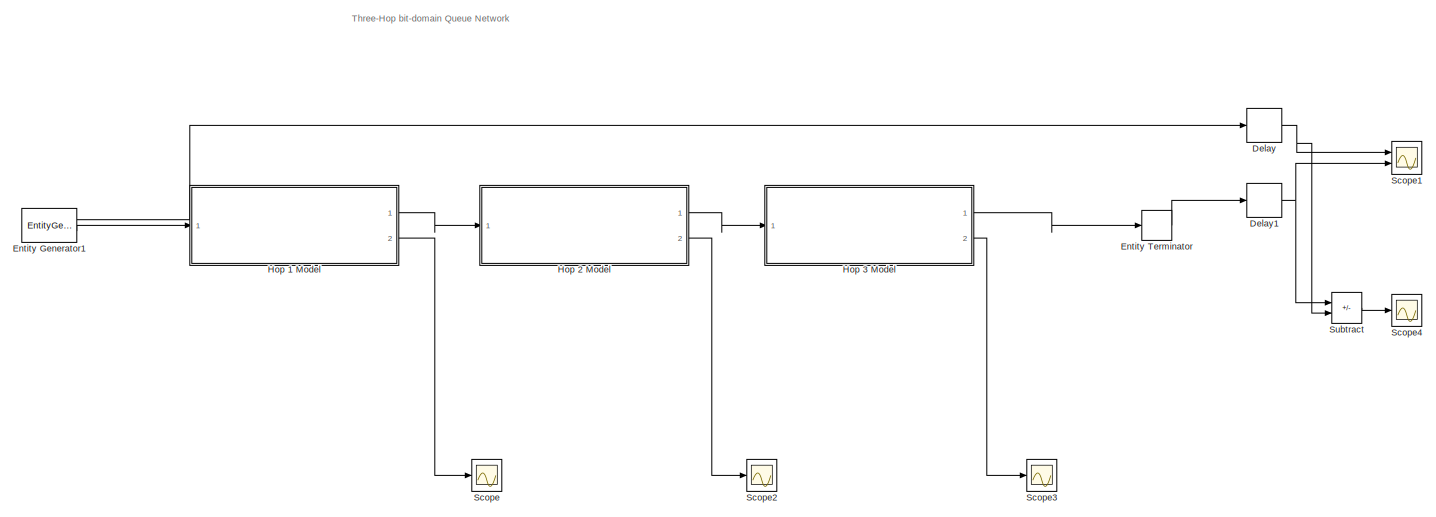
[diagram: root canvas - part 1/2, most of the canvas]
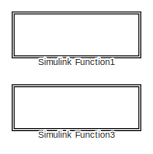
[diagram: root canvas - part 2/2, middle left region]
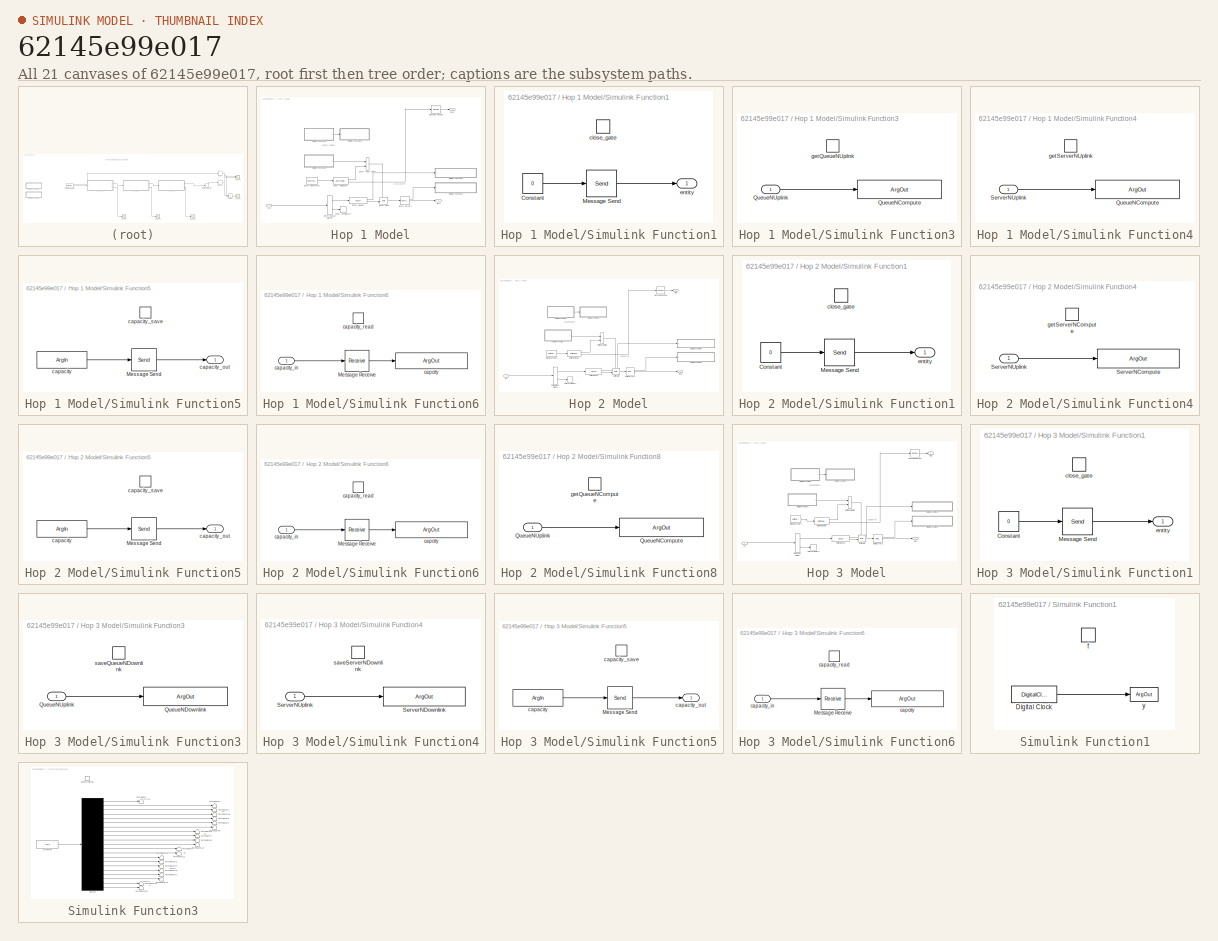
[diagram: thumbnail index - all 21 canvases of the model, root first then tree order]
MODEL slx_62145e99e017
KIND model
CONFIG AbsTol = auto
CONFIG EnableMultiTasking = on
CONFIG FixedStep = auto
CONFIG MaxStep = auto
CONFIG MinStep = auto
CONFIG RelTol = 1e-3
CONFIG SampleTimeConstraint = Unconstrained
CONFIG SolverName = VariableStepAuto
CONFIG StartTime = 0.0
CONFIG StopTime = 100
BLOCK [Delay] Delay
  Commented = on
  DelayLength = 0
  InputPortMap = u0
  Ports = [1, 1]
  SampleTime = 1
BLOCK [Delay] Delay1
  Commented = on
  DelayLength = 0
  InputPortMap = u0
  Ports = [1, 1]
  SampleTime = 1
BLOCK [EntityGenerator] Entity Generator1
  AttributeInitialValue = inf|-1|-1|-1|-1|-1|-1|-1|-1|-1|-1|-1|-1|inf|inf|inf|inf|inf|inf|inf
  AttributeName = starttime|queuen_uplink_bu|servern_uplink_bu|queuen_compute_bu|servern_compute_bu|queuen_downlink_bu|servern_downlink_bu|queuen_compute_bc|servern_compute_bc|queuen_downlink_bc|servern_downlink_bc|queuen_downlink_bd|servern_downlink_bd|queuetime_uplink|servicetime_uplink|queuetime_compute|servicetime_compute|queuetime_downlink|servicetime_downlink|endtime
  EntityType = Structured
  EntityTypeName = Entity
  GenerateAction = entity.starttime = getCurrentTime();\n\nentity.queuen_uplink_bu = getQueueNUplink();\nentity.servern_uplink_bu = getServerNUplink();\n\nentity.queuen_compute_bu = getQueueNCompute();\nentity.servern_compute_bu = getServerNCompute();\n\nentity.queuen_downlink_bu = getQueueNDownlink();\nentity.servern_downlink_bu = getServerNDownlink();\n\n%[nd,ne,np] = saveCrossNUplink();\n%entity.crossn_uplink = nd-ne-np;
  GenerateEntityAtSimulationStart = off
  IntergenerationTimeAction = T_max = sim_vars(1);\nrho = sim_vars(2);\n\npersistent T;\nif isempty(T)\n    T = 1; \nend\n\npersistent next_dt;\nif isempty(next_dt)\n    next_dt = 0;\nend\n\npersistent count igt;\nif isempty(count)\n    igt = zeros(1,rho);\n    igt(end) = 1;\n    count = 1;\nend\n\nif T > T_max\n    dt = inf;\nelse\n    dt = next_dt;\n    next_dt = igt(count);\n    count = count+1;\n    if (next_dt==1)\n        count = 1;\n        T = T ...<+16ch>
  NumberEntitiesDeparted = on
  OutputPortMap = o0,o3
  OutputPortMessageModes = n,m
  Ports = [0, 2]
  TimeSource = MATLAB action
BLOCK [EntityTerminator] Entity Terminator
  EntryAction = entity.endtime = getCurrentTime();\n\nsaveAttributes([entity.starttime;               ...\n                entity.queuen_uplink_bu;        ...\n                entity.servern_uplink_bu;       ...\n                entity.queuen_compute_bu;       ...\n                entity.servern_compute_bu;      ...\n                entity.queuen_downlink_bu;      ...\n                entity.servern_downlink_bu;     ...\n...<+707ch>
  InputPortMap = u0
  InputPortMessageModes = m
  NumberEntitiesArrived = on
  OutputPortMap = o0
  Ports = [1, 1]
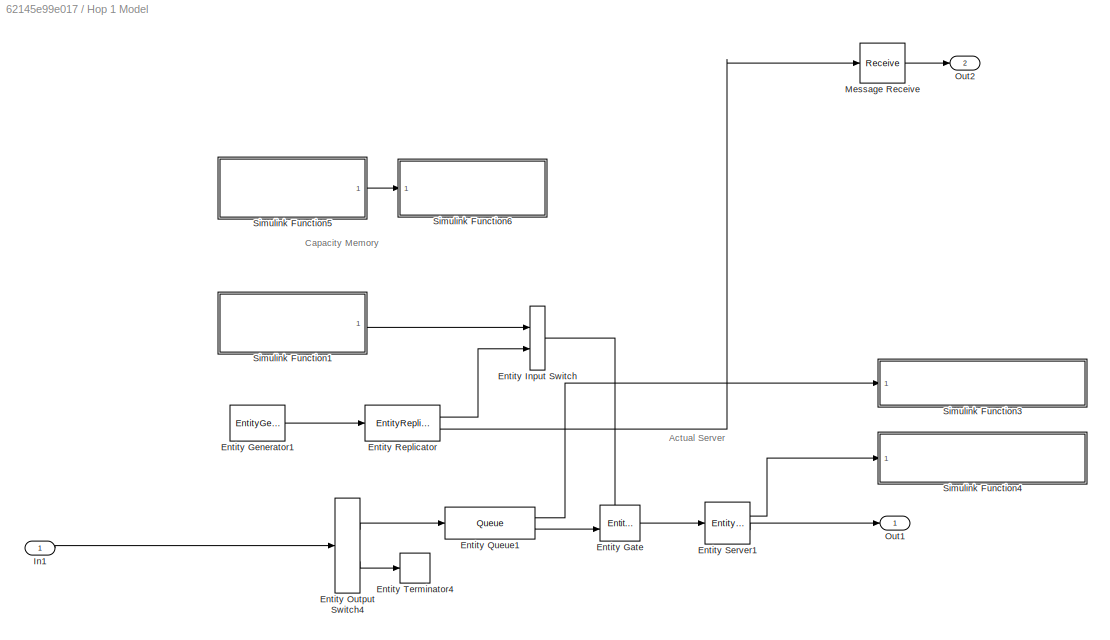
BLOCK [SubSystem] Hop 1 Model
  Ports = [1, 2]
  RequestExecContextInheritance = off
BLOCK [EntityGate] Hop 1 Model/Entity Gate
  InputPortMap = u0,u1
  InputPortMessageModes = m,m
  OutputPortMap = o0
  OutputPortMessageModes = m
  Ports = [2, 1]
BLOCK [EntityGenerator] Hop 1 Model/Entity Generator1
  AttributeInitialValue = 0
  AttributeName = entity
  EntityTypeName = server_capacity_bell
  GenerateAction = time_slot_duration = sim_vars(3);\nw = sim_vars(4);\nsnr = sim_vars(5);\ncapacity = getServerCapacityHop1(1,time_slot_duration,snr,w,sim_vars(13));\ncapacity_save(capacity);\nentity = capacity;
  IntergenerationTimeAction = dt = 1;
  OutputPortMap = o3
  OutputPortMessageModes = m
  Ports = [0, 1]
  TimeSource = MATLAB action
BLOCK [EntityInputSwitch] Hop 1 Model/Entity Input Switch
  InputPortMap = u1,u2
  InputPortMessageModes = m,m
  OutputPortMap = o0
  OutputPortMessageModes = m
  Ports = [2, 1]
BLOCK [EntityOutputSwitch] Hop 1 Model/Entity Output Switch4
  InputPortMap = u1
  InputPortMessageModes = m
  OutputPortMap = o0,o1
  OutputPortMessageModes = m,m
  Ports = [1, 2]
  SwitchAttributeName = drop_at_source
BLOCK [Queue] Hop 1 Model/Entity Queue1
  Capacity = sim_vars(10)
  InputPortMap = u0
  InputPortMessageModes = m
  NumberEntitiesInBlock = on
  OutputPortMap = o1,o5
  OutputPortMessageModes = n,m
  Ports = [1, 2]
BLOCK [EntityReplicator] Hop 1 Model/Entity Replicator
  InputPortMap = u0
  InputPortMessageModes = m
  OutputPortMap = o0,o1
  OutputPortMessageModes = m,m
  Ports = [1, 2]
BLOCK [EntityServer] Hop 1 Model/Entity Server1
  Capacity = 1
  EntryAction = % update packet's queue timestamp\nentity.queuetime_uplink = getCurrentTime();
  InputPortMap = u2
  InputPortMessageModes = m
  NumberEntitiesInBlock = on
  OutputPortMap = o1,o9
  OutputPortMessageModes = n,m
  Ports = [1, 2]
  ServiceCompleteAction = % update service time\nentity.servicetime_uplink = getCurrentTime();\n\n% save network state in front\nentity.queuen_compute_bc = getQueueNCompute();\nentity.servern_compute_bc = getServerNCompute();\n\nentity.queuen_downlink_bc = getQueueNDownlink();\nentity.servern_downlink_bc = getServerNDownlink();
  ServiceTimeAction = capacity = capacity_read();\ncapacity_save(capacity-1);\nif capacity == 1\n    close_gate();\nend\ndt = 0;
  ServiceTimeSource = MATLAB action
BLOCK [EntityTerminator] Hop 1 Model/Entity Terminator4
  EntryAction = saveAttributes([entity.starttime;               ...\n                entity.queuen_uplink_bu;        ...\n                entity.servern_uplink_bu;       ...\n                entity.queuen_compute_bu;       ...\n                entity.servern_compute_bu;      ...\n                entity.queuen_downlink_bu;      ...\n                entity.servern_downlink_bu;     ...\n                entity.queuen_comput...<+671ch>  <repeated x3 — deduplicated; at blocks: Entity Terminator4>
  InputPortMap = u0
  InputPortMessageModes = m
  Ports = [1]
BLOCK [Inport] Hop 1 Model/In1
BLOCK [Receive] Hop 1 Model/Message Receive
  InitialValue = [0]
  InputPortMap = u0
  InputPortMessageModes = m
  OutputPortMap = o1
  Ports = [1, 1]
  QueueLength = 1
  QueueOverwriting = on
  SampleTime = 1
BLOCK [Outport] Hop 1 Model/Out1
BLOCK [Outport] Hop 1 Model/Out2
  Port = 2
BLOCK [SubSystem] Hop 1 Model/Simulink Function1
  Ports = [0, 1, 0, 1]
  RequestExecContextInheritance = off
  TreatAsAtomicUnit = on
BLOCK [Constant] Hop 1 Model/Simulink Function1/Constant
  Value = 0
BLOCK [Send] Hop 1 Model/Simulink Function1/Message Send
  InputPortMap = u1
  OutputPortMessageModes = m
  Ports = [1, 1]
BLOCK [TriggerPort] Hop 1 Model/Simulink Function1/close_gate
  FunctionName = close_gate
  FunctionVisibility = scoped
  IsSimulinkFunction = on
  Ports = []
  StatesWhenEnabling = held
  TriggerType = function-call
  VariantControl = (inherit)
BLOCK [Outport] Hop 1 Model/Simulink Function1/entity
  InitialOutput = [0]
  VectorParamsAs1DForOutWhenUnconnected = off
BLOCK [SubSystem] Hop 1 Model/Simulink Function3
  Ports = [1, 0, 0, 1]
  RequestExecContextInheritance = off
  TreatAsAtomicUnit = on
BLOCK [ArgOut] Hop 1 Model/Simulink Function3/QueueNCompute
  ArgumentName = QueueNUplink
  DisableCoverage = on
BLOCK [Inport] Hop 1 Model/Simulink Function3/QueueNUplink
BLOCK [TriggerPort] Hop 1 Model/Simulink Function3/getQueueNUplink
  FunctionName = getQueueNUplink
  IsSimulinkFunction = on
  Ports = []
  StatesWhenEnabling = held
  TriggerType = function-call
  VariantControl = (inherit)
BLOCK [SubSystem] Hop 1 Model/Simulink Function4
  Ports = [1, 0, 0, 1]
  RequestExecContextInheritance = off
  TreatAsAtomicUnit = on
BLOCK [ArgOut] Hop 1 Model/Simulink Function4/QueueNCompute
  ArgumentName = ServerNUplink
  DisableCoverage = on
BLOCK [Inport] Hop 1 Model/Simulink Function4/ServerNUplink
BLOCK [TriggerPort] Hop 1 Model/Simulink Function4/getServerNUplink
  FunctionName = getServerNUplink
  IsSimulinkFunction = on
  Ports = []
  StatesWhenEnabling = held
  TriggerType = function-call
  VariantControl = (inherit)
BLOCK [SubSystem] Hop 1 Model/Simulink Function5
  Ports = [0, 1, 0, 1]
  RequestExecContextInheritance = off
  TreatAsAtomicUnit = on
BLOCK [Send] Hop 1 Model/Simulink Function5/Message Send
  InputPortMap = u1
  OutputPortMessageModes = m
  Ports = [1, 1]
BLOCK [ArgIn] Hop 1 Model/Simulink Function5/capacity
  ArgumentName = capacity
  DisableCoverage = on
BLOCK [Outport] Hop 1 Model/Simulink Function5/capacity_out
  InitialOutput = [0]
  VectorParamsAs1DForOutWhenUnconnected = off
BLOCK [TriggerPort] Hop 1 Model/Simulink Function5/capacity_save
  FunctionName = capacity_save
  FunctionVisibility = scoped
  IsSimulinkFunction = on
  Ports = []
  StatesWhenEnabling = held
  TriggerType = function-call
  VariantControl = (inherit)
BLOCK [SubSystem] Hop 1 Model/Simulink Function6
  Ports = [1, 0, 0, 1]
  RequestExecContextInheritance = off
  TreatAsAtomicUnit = on
BLOCK [Receive] Hop 1 Model/Simulink Function6/Message Receive
  InitialValue = [0]
  InputPortMap = u0
  InputPortMessageModes = m
  OutputPortMap = o1
  Ports = [1, 1]
  QueueLength = 1
  QueueOverwriting = on
BLOCK [Inport] Hop 1 Model/Simulink Function6/capacity_in
BLOCK [TriggerPort] Hop 1 Model/Simulink Function6/capacity_read
  FunctionName = capacity_read
  FunctionVisibility = scoped
  IsSimulinkFunction = on
  Ports = []
  StatesWhenEnabling = held
  TriggerType = function-call
  VariantControl = (inherit)
BLOCK [ArgOut] Hop 1 Model/Simulink Function6/capcity
  ArgumentName = capacity
  DisableCoverage = on
BLOCK [SubSystem] Hop 2 Model
  Ports = [1, 2]
  RequestExecContextInheritance = off
BLOCK [EntityGate] Hop 2 Model/Entity Gate
  InputPortMap = u0,u1
  InputPortMessageModes = m,m
  OutputPortMap = o0
  OutputPortMessageModes = m
  Ports = [2, 1]
BLOCK [EntityGenerator] Hop 2 Model/Entity Generator1
  AttributeInitialValue = 0
  AttributeName = entity
  EntityTypeName = server_capacity_bell
  GenerateAction = time_slot_duration = sim_vars(3);\nw = sim_vars(6);\nsnr = sim_vars(7);\ncapacity = getServerCapacityHop2(1,time_slot_duration,snr,w,sim_vars(13));\ncapacity_save(capacity);\nentity = capacity;
  IntergenerationTimeAction = dt = 1;
  OutputPortMap = o3
  OutputPortMessageModes = m
  Ports = [0, 1]
  TimeSource = MATLAB action
BLOCK [EntityInputSwitch] Hop 2 Model/Entity Input Switch
  InputPortMap = u1,u2
  InputPortMessageModes = m,m
  OutputPortMap = o0
  OutputPortMessageModes = m
  Ports = [2, 1]
BLOCK [EntityOutputSwitch] Hop 2 Model/Entity Output Switch4
  InputPortMap = u1
  InputPortMessageModes = m
  OutputPortMap = o0,o1
  OutputPortMessageModes = m,m
  Ports = [1, 2]
  SwitchAttributeName = drop_at_source
BLOCK [Queue] Hop 2 Model/Entity Queue1
  Capacity = sim_vars(11)
  InputPortMap = u0
  InputPortMessageModes = m
  NumberEntitiesInBlock = on
  OutputPortMap = o1,o5
  OutputPortMessageModes = n,m
  Ports = [1, 2]
BLOCK [EntityReplicator] Hop 2 Model/Entity Replicator
  InputPortMap = u0
  InputPortMessageModes = m
  OutputPortMap = o0,o1
  OutputPortMessageModes = m,m
  Ports = [1, 2]
BLOCK [EntityServer] Hop 2 Model/Entity Server1
  Capacity = 1
  EntryAction = % record packet's queue timestamp\nentity.queuetime_compute = getCurrentTime();
  InputPortMap = u2
  InputPortMessageModes = m
  NumberEntitiesInBlock = on
  OutputPortMap = o1,o9
  OutputPortMessageModes = n,m
  Ports = [1, 2]
  ServiceCompleteAction = % record service timestamp\nentity.servicetime_compute = getCurrentTime();\n\n% record network state in front\nentity.queuen_downlink_bd = getQueueNDownlink();\nentity.servern_downlink_bd = getServerNDownlink();
  ServiceTimeAction = capacity = capacity_read();\ncapacity_save(capacity-1);\nif capacity == 1\n    close_gate();\nend\ndt = 0;
  ServiceTimeSource = MATLAB action
BLOCK [EntityTerminator] Hop 2 Model/Entity Terminator4
  InputPortMap = u0
  InputPortMessageModes = m
  Ports = [1]
BLOCK [Inport] Hop 2 Model/In1
BLOCK [Receive] Hop 2 Model/Message Receive
  InitialValue = [0]
  InputPortMap = u0
  InputPortMessageModes = m
  OutputPortMap = o1
  Ports = [1, 1]
  QueueLength = 1
  QueueOverwriting = on
  SampleTime = 1
BLOCK [Outport] Hop 2 Model/Out1
BLOCK [Outport] Hop 2 Model/Out2
  Port = 2
BLOCK [SubSystem] Hop 2 Model/Simulink Function1
  Ports = [0, 1, 0, 1]
  RequestExecContextInheritance = off
  TreatAsAtomicUnit = on
BLOCK [Constant] Hop 2 Model/Simulink Function1/Constant
  Value = 0
BLOCK [Send] Hop 2 Model/Simulink Function1/Message Send
  InputPortMap = u1
  OutputPortMessageModes = m
  Ports = [1, 1]
BLOCK [TriggerPort] Hop 2 Model/Simulink Function1/close_gate
  FunctionName = close_gate
  FunctionVisibility = scoped
  IsSimulinkFunction = on
  Ports = []
  StatesWhenEnabling = held
  TriggerType = function-call
  VariantControl = (inherit)
BLOCK [Outport] Hop 2 Model/Simulink Function1/entity
  InitialOutput = [0]
  VectorParamsAs1DForOutWhenUnconnected = off
BLOCK [SubSystem] Hop 2 Model/Simulink Function4
  Ports = [1, 0, 0, 1]
  RequestExecContextInheritance = off
  TreatAsAtomicUnit = on
BLOCK [ArgOut] Hop 2 Model/Simulink Function4/ServerNCompute
  ArgumentName = ServerNCompute
  DisableCoverage = on
BLOCK [Inport] Hop 2 Model/Simulink Function4/ServerNUplink
BLOCK [TriggerPort] Hop 2 Model/Simulink Function4/getServerNCompute
  FunctionName = getServerNCompute
  IsSimulinkFunction = on
  Ports = []
  StatesWhenEnabling = held
  TriggerType = function-call
  VariantControl = (inherit)
BLOCK [SubSystem] Hop 2 Model/Simulink Function5
  Ports = [0, 1, 0, 1]
  RequestExecContextInheritance = off
  TreatAsAtomicUnit = on
BLOCK [Send] Hop 2 Model/Simulink Function5/Message Send
  InputPortMap = u1
  OutputPortMessageModes = m
  Ports = [1, 1]
BLOCK [ArgIn] Hop 2 Model/Simulink Function5/capacity
  ArgumentName = capacity
  DisableCoverage = on
BLOCK [Outport] Hop 2 Model/Simulink Function5/capacity_out
  InitialOutput = [0]
  VectorParamsAs1DForOutWhenUnconnected = off
BLOCK [TriggerPort] Hop 2 Model/Simulink Function5/capacity_save
  FunctionName = capacity_save
  FunctionVisibility = scoped
  IsSimulinkFunction = on
  Ports = []
  StatesWhenEnabling = held
  TriggerType = function-call
  VariantControl = (inherit)
BLOCK [SubSystem] Hop 2 Model/Simulink Function6
  Ports = [1, 0, 0, 1]
  RequestExecContextInheritance = off
  TreatAsAtomicUnit = on
BLOCK [Receive] Hop 2 Model/Simulink Function6/Message Receive
  InitialValue = [0]
  InputPortMap = u0
  InputPortMessageModes = m
  OutputPortMap = o1
  Ports = [1, 1]
  QueueLength = 1
  QueueOverwriting = on
BLOCK [Inport] Hop 2 Model/Simulink Function6/capacity_in
BLOCK [TriggerPort] Hop 2 Model/Simulink Function6/capacity_read
  FunctionName = capacity_read
  FunctionVisibility = scoped
  IsSimulinkFunction = on
  Ports = []
  StatesWhenEnabling = held
  TriggerType = function-call
  VariantControl = (inherit)
BLOCK [ArgOut] Hop 2 Model/Simulink Function6/capcity
  ArgumentName = capacity
  DisableCoverage = on
BLOCK [SubSystem] Hop 2 Model/Simulink Function8
  Ports = [1, 0, 0, 1]
  RequestExecContextInheritance = off
  TreatAsAtomicUnit = on
BLOCK [ArgOut] Hop 2 Model/Simulink Function8/QueueNCompute
  ArgumentName = QueueNCompute
  DisableCoverage = on
BLOCK [Inport] Hop 2 Model/Simulink Function8/QueueNUplink
BLOCK [TriggerPort] Hop 2 Model/Simulink Function8/getQueueNCompute
  FunctionName = getQueueNCompute
  IsSimulinkFunction = on
  Ports = []
  StatesWhenEnabling = held
  TriggerType = function-call
  VariantControl = (inherit)
BLOCK [SubSystem] Hop 3 Model
  Ports = [1, 2]
  RequestExecContextInheritance = off
BLOCK [EntityGate] Hop 3 Model/Entity Gate
  InputPortMap = u0,u1
  InputPortMessageModes = m,m
  OutputPortMap = o0
  OutputPortMessageModes = m
  Ports = [2, 1]
BLOCK [EntityGenerator] Hop 3 Model/Entity Generator1
  AttributeInitialValue = 0
  AttributeName = entity
  EntityTypeName = server_capacity_bell
  GenerateAction = time_slot_duration = sim_vars(3);\nw = sim_vars(8);\nsnr = sim_vars(9);\ncapacity = getServerCapacityHop3(1,time_slot_duration,snr,w,sim_vars(13));\ncapacity_save(capacity);\nentity = capacity;
  IntergenerationTimeAction = dt = 1;
  OutputPortMap = o3
  OutputPortMessageModes = m
  Ports = [0, 1]
  TimeSource = MATLAB action
BLOCK [EntityInputSwitch] Hop 3 Model/Entity Input Switch
  InputPortMap = u1,u2
  InputPortMessageModes = m,m
  OutputPortMap = o0
  OutputPortMessageModes = m
  Ports = [2, 1]
BLOCK [EntityOutputSwitch] Hop 3 Model/Entity Output Switch4
  InputPortMap = u1
  InputPortMessageModes = m
  OutputPortMap = o0,o1
  OutputPortMessageModes = m,m
  Ports = [1, 2]
  SwitchAttributeName = drop_at_source
BLOCK [Queue] Hop 3 Model/Entity Queue1
  Capacity = sim_vars(12)
  InputPortMap = u0
  InputPortMessageModes = m
  NumberEntitiesInBlock = on
  OutputPortMap = o1,o5
  OutputPortMessageModes = n,m
  Ports = [1, 2]
BLOCK [EntityReplicator] Hop 3 Model/Entity Replicator
  InputPortMap = u0
  InputPortMessageModes = m
  OutputPortMap = o0,o1
  OutputPortMessageModes = m,m
  Ports = [1, 2]
BLOCK [EntityServer] Hop 3 Model/Entity Server1
  Capacity = 1
  EntryAction = % record packet's queue timestamp\nentity.queuetime_downlink = getCurrentTime();
  InputPortMap = u2
  InputPortMessageModes = m
  NumberEntitiesInBlock = on
  OutputPortMap = o1,o9
  OutputPortMessageModes = n,m
  Ports = [1, 2]
  ServiceCompleteAction = % record service timestamp\nentity.servicetime_downlink = getCurrentTime();
  ServiceTimeAction = capacity = capacity_read();\ncapacity_save(capacity-1);\nif capacity == 1\n    close_gate();\nend\ndt = 0;
  ServiceTimeSource = MATLAB action
BLOCK [EntityTerminator] Hop 3 Model/Entity Terminator4
  InputPortMap = u0
  InputPortMessageModes = m
  Ports = [1]
BLOCK [Inport] Hop 3 Model/In1
BLOCK [Receive] Hop 3 Model/Message Receive
  InitialValue = [0]
  InputPortMap = u0
  InputPortMessageModes = m
  OutputPortMap = o1
  Ports = [1, 1]
  QueueLength = 1
  QueueOverwriting = on
  SampleTime = 1
BLOCK [Outport] Hop 3 Model/Out1
BLOCK [Outport] Hop 3 Model/Out2
  Port = 2
BLOCK [SubSystem] Hop 3 Model/Simulink Function1
  Ports = [0, 1, 0, 1]
  RequestExecContextInheritance = off
  TreatAsAtomicUnit = on
BLOCK [Constant] Hop 3 Model/Simulink Function1/Constant
  Value = 0
BLOCK [Send] Hop 3 Model/Simulink Function1/Message Send
  InputPortMap = u1
  OutputPortMessageModes = m
  Ports = [1, 1]
BLOCK [TriggerPort] Hop 3 Model/Simulink Function1/close_gate
  FunctionName = close_gate
  FunctionVisibility = scoped
  IsSimulinkFunction = on
  Ports = []
  StatesWhenEnabling = held
  TriggerType = function-call
  VariantControl = (inherit)
BLOCK [Outport] Hop 3 Model/Simulink Function1/entity
  InitialOutput = [0]
  VectorParamsAs1DForOutWhenUnconnected = off
BLOCK [SubSystem] Hop 3 Model/Simulink Function3
  Ports = [1, 0, 0, 1]
  RequestExecContextInheritance = off
  TreatAsAtomicUnit = on
BLOCK [ArgOut] Hop 3 Model/Simulink Function3/QueueNDownlink
  ArgumentName = QueueNDownlink
  DisableCoverage = on
BLOCK [Inport] Hop 3 Model/Simulink Function3/QueueNUplink
BLOCK [TriggerPort] Hop 3 Model/Simulink Function3/saveQueueNDownlink
  FunctionName = getQueueNDownlink
  IsSimulinkFunction = on
  Ports = []
  StatesWhenEnabling = held
  TriggerType = function-call
  VariantControl = (inherit)
BLOCK [SubSystem] Hop 3 Model/Simulink Function4
  Ports = [1, 0, 0, 1]
  RequestExecContextInheritance = off
  TreatAsAtomicUnit = on
BLOCK [ArgOut] Hop 3 Model/Simulink Function4/ServerNDownlink
  ArgumentName = ServerNDownlink
  DisableCoverage = on
BLOCK [Inport] Hop 3 Model/Simulink Function4/ServerNUplink
BLOCK [TriggerPort] Hop 3 Model/Simulink Function4/saveServerNDownlink
  FunctionName = getServerNDownlink
  IsSimulinkFunction = on
  Ports = []
  StatesWhenEnabling = held
  TriggerType = function-call
  VariantControl = (inherit)
BLOCK [SubSystem] Hop 3 Model/Simulink Function5
  Ports = [0, 1, 0, 1]
  RequestExecContextInheritance = off
  TreatAsAtomicUnit = on
BLOCK [Send] Hop 3 Model/Simulink Function5/Message Send
  InputPortMap = u1
  OutputPortMessageModes = m
  Ports = [1, 1]
BLOCK [ArgIn] Hop 3 Model/Simulink Function5/capacity
  ArgumentName = capacity
  DisableCoverage = on
BLOCK [Outport] Hop 3 Model/Simulink Function5/capacity_out
  InitialOutput = [0]
  VectorParamsAs1DForOutWhenUnconnected = off
BLOCK [TriggerPort] Hop 3 Model/Simulink Function5/capacity_save
  FunctionName = capacity_save
  FunctionVisibility = scoped
  IsSimulinkFunction = on
  Ports = []
  StatesWhenEnabling = held
  TriggerType = function-call
  VariantControl = (inherit)
BLOCK [SubSystem] Hop 3 Model/Simulink Function6
  Ports = [1, 0, 0, 1]
  RequestExecContextInheritance = off
  TreatAsAtomicUnit = on
BLOCK [Receive] Hop 3 Model/Simulink Function6/Message Receive
  InitialValue = [0]
  InputPortMap = u0
  InputPortMessageModes = m
  OutputPortMap = o1
  Ports = [1, 1]
  QueueLength = 1
  QueueOverwriting = on
BLOCK [Inport] Hop 3 Model/Simulink Function6/capacity_in
BLOCK [TriggerPort] Hop 3 Model/Simulink Function6/capacity_read
  FunctionName = capacity_read
  FunctionVisibility = scoped
  IsSimulinkFunction = on
  Ports = []
  StatesWhenEnabling = held
  TriggerType = function-call
  VariantControl = (inherit)
BLOCK [ArgOut] Hop 3 Model/Simulink Function6/capcity
  ArgumentName = capacity
  DisableCoverage = on
BLOCK [Scope] Scope
  Floating = off
  NumInputPorts = 1
  Ports = [1]
  ScopeSpecificationString = Simulink.scopes.TimeScopeBlockCfg('CurrentConfiguration', extmgr.ConfigurationSet(extmgr.Configuration('Core','General UI',true),extmgr.Configuration('Core','Source UI',true),extmgr.Configuration('Sources','WiredSimulink',true,'DataLoggingVariableName','ScopeData1'),extmgr.Configuration('Visuals','Time Domain',true,'SerializedDisplays',{struct('MinYLimReal','22.97561','MaxYLimReal','87.97561','YLa...<+1477ch>
BLOCK [Scope] Scope1
  Commented = on
  Floating = off
  NumInputPorts = 2
  Ports = [2]
  ScopeSpecificationString = Simulink.scopes.TimeScopeBlockCfg('CurrentConfiguration', extmgr.ConfigurationSet(extmgr.Configuration('Core','General UI',true),extmgr.Configuration('Core','Source UI',true),extmgr.Configuration('Sources','WiredSimulink',true,'DataLoggingVariableName','ScopeData1'),extmgr.Configuration('Visuals','Time Domain',true,'SerializedDisplays',{struct('MinYLimReal','11850.73172','MaxYLimReal','13212.69295...<+1477ch>
BLOCK [Scope] Scope2
  Floating = off
  NumInputPorts = 1
  Ports = [1]
  ScopeSpecificationString = Simulink.scopes.TimeScopeBlockCfg('CurrentConfiguration', extmgr.ConfigurationSet(extmgr.Configuration('Core','General UI',true),extmgr.Configuration('Core','Source UI',true),extmgr.Configuration('Sources','WiredSimulink',true,'DataLoggingVariableName','ScopeData2'),extmgr.Configuration('Visuals','Time Domain',true,'SerializedDisplays',{struct('MinYLimReal','-6.00000','MaxYLimReal','94.00000','YLa...<+1449ch>
BLOCK [Scope] Scope3
  Floating = off
  NumInputPorts = 1
  Ports = [1]
  ScopeSpecificationString = Simulink.scopes.TimeScopeBlockCfg('CurrentConfiguration', extmgr.ConfigurationSet(extmgr.Configuration('Core','General UI',true),extmgr.Configuration('Core','Source UI',true),extmgr.Configuration('Sources','WiredSimulink',true,'DataLoggingVariableName','ScopeData3'),extmgr.Configuration('Visuals','Time Domain',true,'SerializedDisplays',{struct('MinYLimReal','-6.25','MaxYLimReal','76.25','YLabelRea...<+1432ch>
BLOCK [Scope] Scope4
  Commented = on
  Floating = off
  NumInputPorts = 1
  Ports = [1]
  ScopeSpecificationString = Simulink.scopes.TimeScopeBlockCfg('CurrentConfiguration', extmgr.ConfigurationSet(extmgr.Configuration('Core','General UI',true),extmgr.Configuration('Core','Source UI',true),extmgr.Configuration('Sources','WiredSimulink',true,'DataLoggingVariableName','ScopeData4'),extmgr.Configuration('Visuals','Time Domain',true,'SerializedDisplays',{struct('MinYLimReal','-21.625','MaxYLimReal','194.625','YLabe...<+1439ch>
BLOCK [SubSystem] Simulink Function1
  Ports = [0, 0, 0, 1]
  RequestExecContextInheritance = off
  TreatAsAtomicUnit = on
BLOCK [DigitalClock] Simulink Function1/Digital Clock
  SampleTime = -1
BLOCK [TriggerPort] Simulink Function1/f
  FunctionName = getCurrentTime
  IsSimulinkFunction = on
  Ports = []
  StatesWhenEnabling = held
  TriggerType = function-call
  VariantControl = (inherit)
BLOCK [ArgOut] Simulink Function1/y
  ArgumentName = y
  DisableCoverage = on
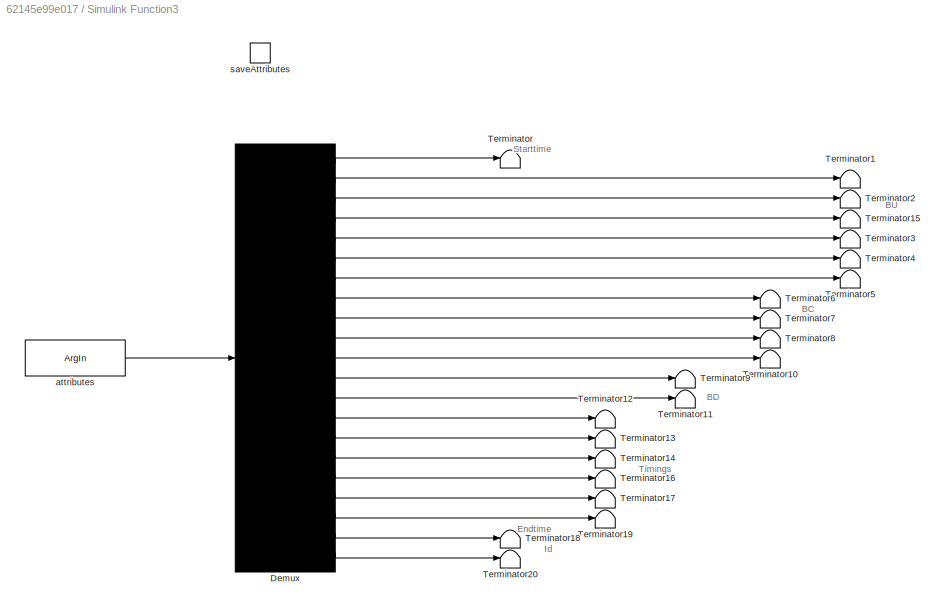
BLOCK [SubSystem] Simulink Function3
  Ports = [0, 0, 0, 1]
  RequestExecContextInheritance = off
  TreatAsAtomicUnit = on
BLOCK [Demux] Simulink Function3/Demux
  DisplayOption = none
  Outputs = 21
  Ports = [1, 21]
BLOCK [Terminator] Simulink Function3/Terminator
BLOCK [Terminator] Simulink Function3/Terminator1
BLOCK [Terminator] Simulink Function3/Terminator10
BLOCK [Terminator] Simulink Function3/Terminator11
BLOCK [Terminator] Simulink Function3/Terminator12
BLOCK [Terminator] Simulink Function3/Terminator13
BLOCK [Terminator] Simulink Function3/Terminator14
BLOCK [Terminator] Simulink Function3/Terminator15
BLOCK [Terminator] Simulink Function3/Terminator16
BLOCK [Terminator] Simulink Function3/Terminator17
BLOCK [Terminator] Simulink Function3/Terminator18
BLOCK [Terminator] Simulink Function3/Terminator19
BLOCK [Terminator] Simulink Function3/Terminator2
BLOCK [Terminator] Simulink Function3/Terminator20
BLOCK [Terminator] Simulink Function3/Terminator3
BLOCK [Terminator] Simulink Function3/Terminator4
BLOCK [Terminator] Simulink Function3/Terminator5
BLOCK [Terminator] Simulink Function3/Terminator6
BLOCK [Terminator] Simulink Function3/Terminator7
BLOCK [Terminator] Simulink Function3/Terminator8
BLOCK [Terminator] Simulink Function3/Terminator9
BLOCK [ArgIn] Simulink Function3/attributes
  ArgumentName = attributes
  DisableCoverage = on
  PortDimensions = 21
BLOCK [TriggerPort] Simulink Function3/saveAttributes
  FunctionName = saveAttributes
  IsSimulinkFunction = on
  Ports = []
  StatesWhenEnabling = held
  TriggerType = function-call
  VariantControl = (inherit)
BLOCK [Sum] Subtract
  Commented = on
  IconShape = rectangular
  Inputs = -+
  Ports = [2, 1]
ANNOTATION (root): Three-Hop bit-domain Queue Network
ANNOTATION Hop 1 Model: Actual Server
ANNOTATION Hop 1 Model: Capacity Memory
ANNOTATION Hop 2 Model: Actual Server
ANNOTATION Hop 2 Model: Capacity Memory
ANNOTATION Hop 3 Model: Actual Server
ANNOTATION Hop 3 Model: Capacity Memory
ANNOTATION Simulink Function3: BC
ANNOTATION Simulink Function3: BD
ANNOTATION Simulink Function3: BU
ANNOTATION Simulink Function3: Endtime
ANNOTATION Simulink Function3: Id
ANNOTATION Simulink Function3: Starttime
ANNOTATION Simulink Function3: Timings
NET Delay1:1 -> Scope1:2, Subtract:1
NET Delay:1 -> Scope1:1, Subtract:2
LINE Entity Generator1:1 -> Delay:1
LINE Entity Generator1:2 -> Hop 1 Model:1
LINE Entity Terminator:1 -> Delay1:1
LINE Hop 1 Model/Entity Gate:1 -> Hop 1 Model/Entity Server1:1
LINE Hop 1 Model/Entity Generator1:1 -> Hop 1 Model/Entity Replicator:1
LINE Hop 1 Model/Entity Input Switch:1 -> Hop 1 Model/Entity Gate:1
LINE Hop 1 Model/Entity Output Switch4:1 -> Hop 1 Model/Entity Queue1:1
LINE Hop 1 Model/Entity Output Switch4:2 -> Hop 1 Model/Entity Terminator4:1
LINE Hop 1 Model/Entity Queue1:1 -> Hop 1 Model/Simulink Function3:1
LINE Hop 1 Model/Entity Queue1:2 -> Hop 1 Model/Entity Gate:2
LINE Hop 1 Model/Entity Replicator:1 -> Hop 1 Model/Entity Input Switch:2
LINE Hop 1 Model/Entity Replicator:2 -> Hop 1 Model/Message Receive:1
LINE Hop 1 Model/Entity Server1:1 -> Hop 1 Model/Simulink Function4:1
LINE Hop 1 Model/Entity Server1:2 -> Hop 1 Model/Out1:1
LINE Hop 1 Model/In1:1 -> Hop 1 Model/Entity Output Switch4:1
LINE Hop 1 Model/Message Receive:1 -> Hop 1 Model/Out2:1
LINE Hop 1 Model/Simulink Function1/Constant:1 -> Hop 1 Model/Simulink Function1/Message Send:1
LINE Hop 1 Model/Simulink Function1/Message Send:1 -> Hop 1 Model/Simulink Function1/entity:1
LINE Hop 1 Model/Simulink Function1:1 -> Hop 1 Model/Entity Input Switch:1
LINE Hop 1 Model/Simulink Function3/QueueNUplink:1 -> Hop 1 Model/Simulink Function3/QueueNCompute:1
LINE Hop 1 Model/Simulink Function4/ServerNUplink:1 -> Hop 1 Model/Simulink Function4/QueueNCompute:1
LINE Hop 1 Model/Simulink Function5/Message Send:1 -> Hop 1 Model/Simulink Function5/capacity_out:1
LINE Hop 1 Model/Simulink Function5/capacity:1 -> Hop 1 Model/Simulink Function5/Message Send:1
LINE Hop 1 Model/Simulink Function5:1 -> Hop 1 Model/Simulink Function6:1
LINE Hop 1 Model/Simulink Function6/Message Receive:1 -> Hop 1 Model/Simulink Function6/capcity:1
LINE Hop 1 Model/Simulink Function6/capacity_in:1 -> Hop 1 Model/Simulink Function6/Message Receive:1
LINE Hop 1 Model:1 -> Hop 2 Model:1
LINE Hop 1 Model:2 -> Scope:1
LINE Hop 2 Model/Entity Gate:1 -> Hop 2 Model/Entity Server1:1
LINE Hop 2 Model/Entity Generator1:1 -> Hop 2 Model/Entity Replicator:1
LINE Hop 2 Model/Entity Input Switch:1 -> Hop 2 Model/Entity Gate:1
LINE Hop 2 Model/Entity Output Switch4:1 -> Hop 2 Model/Entity Queue1:1
LINE Hop 2 Model/Entity Output Switch4:2 -> Hop 2 Model/Entity Terminator4:1
LINE Hop 2 Model/Entity Queue1:1 -> Hop 2 Model/Simulink Function8:1
LINE Hop 2 Model/Entity Queue1:2 -> Hop 2 Model/Entity Gate:2
LINE Hop 2 Model/Entity Replicator:1 -> Hop 2 Model/Entity Input Switch:2
LINE Hop 2 Model/Entity Replicator:2 -> Hop 2 Model/Message Receive:1
LINE Hop 2 Model/Entity Server1:1 -> Hop 2 Model/Simulink Function4:1
LINE Hop 2 Model/Entity Server1:2 -> Hop 2 Model/Out1:1
LINE Hop 2 Model/In1:1 -> Hop 2 Model/Entity Output Switch4:1
LINE Hop 2 Model/Message Receive:1 -> Hop 2 Model/Out2:1
LINE Hop 2 Model/Simulink Function1/Constant:1 -> Hop 2 Model/Simulink Function1/Message Send:1
LINE Hop 2 Model/Simulink Function1/Message Send:1 -> Hop 2 Model/Simulink Function1/entity:1
LINE Hop 2 Model/Simulink Function1:1 -> Hop 2 Model/Entity Input Switch:1
LINE Hop 2 Model/Simulink Function4/ServerNUplink:1 -> Hop 2 Model/Simulink Function4/ServerNCompute:1
LINE Hop 2 Model/Simulink Function5/Message Send:1 -> Hop 2 Model/Simulink Function5/capacity_out:1
LINE Hop 2 Model/Simulink Function5/capacity:1 -> Hop 2 Model/Simulink Function5/Message Send:1
LINE Hop 2 Model/Simulink Function5:1 -> Hop 2 Model/Simulink Function6:1
LINE Hop 2 Model/Simulink Function6/Message Receive:1 -> Hop 2 Model/Simulink Function6/capcity:1
LINE Hop 2 Model/Simulink Function6/capacity_in:1 -> Hop 2 Model/Simulink Function6/Message Receive:1
LINE Hop 2 Model/Simulink Function8/QueueNUplink:1 -> Hop 2 Model/Simulink Function8/QueueNCompute:1
LINE Hop 2 Model:1 -> Hop 3 Model:1
LINE Hop 2 Model:2 -> Scope2:1
LINE Hop 3 Model/Entity Gate:1 -> Hop 3 Model/Entity Server1:1
LINE Hop 3 Model/Entity Generator1:1 -> Hop 3 Model/Entity Replicator:1
LINE Hop 3 Model/Entity Input Switch:1 -> Hop 3 Model/Entity Gate:1
LINE Hop 3 Model/Entity Output Switch4:1 -> Hop 3 Model/Entity Queue1:1
LINE Hop 3 Model/Entity Output Switch4:2 -> Hop 3 Model/Entity Terminator4:1
LINE Hop 3 Model/Entity Queue1:1 -> Hop 3 Model/Simulink Function3:1
LINE Hop 3 Model/Entity Queue1:2 -> Hop 3 Model/Entity Gate:2
LINE Hop 3 Model/Entity Replicator:1 -> Hop 3 Model/Entity Input Switch:2
LINE Hop 3 Model/Entity Replicator:2 -> Hop 3 Model/Message Receive:1
LINE Hop 3 Model/Entity Server1:1 -> Hop 3 Model/Simulink Function4:1
LINE Hop 3 Model/Entity Server1:2 -> Hop 3 Model/Out1:1
LINE Hop 3 Model/In1:1 -> Hop 3 Model/Entity Output Switch4:1
LINE Hop 3 Model/Message Receive:1 -> Hop 3 Model/Out2:1
LINE Hop 3 Model/Simulink Function1/Constant:1 -> Hop 3 Model/Simulink Function1/Message Send:1
LINE Hop 3 Model/Simulink Function1/Message Send:1 -> Hop 3 Model/Simulink Function1/entity:1
LINE Hop 3 Model/Simulink Function1:1 -> Hop 3 Model/Entity Input Switch:1
LINE Hop 3 Model/Simulink Function3/QueueNUplink:1 -> Hop 3 Model/Simulink Function3/QueueNDownlink:1
LINE Hop 3 Model/Simulink Function4/ServerNUplink:1 -> Hop 3 Model/Simulink Function4/ServerNDownlink:1
LINE Hop 3 Model/Simulink Function5/Message Send:1 -> Hop 3 Model/Simulink Function5/capacity_out:1
LINE Hop 3 Model/Simulink Function5/capacity:1 -> Hop 3 Model/Simulink Function5/Message Send:1
LINE Hop 3 Model/Simulink Function5:1 -> Hop 3 Model/Simulink Function6:1
LINE Hop 3 Model/Simulink Function6/Message Receive:1 -> Hop 3 Model/Simulink Function6/capcity:1
LINE Hop 3 Model/Simulink Function6/capacity_in:1 -> Hop 3 Model/Simulink Function6/Message Receive:1
LINE Hop 3 Model:1 -> Entity Terminator:1
LINE Hop 3 Model:2 -> Scope3:1
LINE Simulink Function1/Digital Clock:1 -> Simulink Function1/y:1
LINE Simulink Function3/Demux:1 -> Simulink Function3/Terminator:1
LINE Simulink Function3/Demux:10 -> Simulink Function3/Terminator8:1
LINE Simulink Function3/Demux:11 -> Simulink Function3/Terminator10:1
LINE Simulink Function3/Demux:12 -> Simulink Function3/Terminator9:1
LINE Simulink Function3/Demux:13 -> Simulink Function3/Terminator11:1
LINE Simulink Function3/Demux:14 -> Simulink Function3/Terminator12:1
LINE Simulink Function3/Demux:15 -> Simulink Function3/Terminator13:1
LINE Simulink Function3/Demux:16 -> Simulink Function3/Terminator14:1
LINE Simulink Function3/Demux:17 -> Simulink Function3/Terminator16:1
LINE Simulink Function3/Demux:18 -> Simulink Function3/Terminator17:1
LINE Simulink Function3/Demux:19 -> Simulink Function3/Terminator19:1
LINE Simulink Function3/Demux:2 -> Simulink Function3/Terminator1:1
LINE Simulink Function3/Demux:20 -> Simulink Function3/Terminator18:1
LINE Simulink Function3/Demux:21 -> Simulink Function3/Terminator20:1
LINE Simulink Function3/Demux:3 -> Simulink Function3/Terminator2:1
LINE Simulink Function3/Demux:4 -> Simulink Function3/Terminator15:1
LINE Simulink Function3/Demux:5 -> Simulink Function3/Terminator3:1
LINE Simulink Function3/Demux:6 -> Simulink Function3/Terminator4:1
LINE Simulink Function3/Demux:7 -> Simulink Function3/Terminator5:1
LINE Simulink Function3/Demux:8 -> Simulink Function3/Terminator6:1
LINE Simulink Function3/Demux:9 -> Simulink Function3/Terminator7:1
LINE Simulink Function3/attributes:1 -> Simulink Function3/Demux:1
LINE Subtract:1 -> Scope4:1
note: NET lines group one-source signal fan-out (src -> all destinations, sorted); 1:1 wires keep LINE
